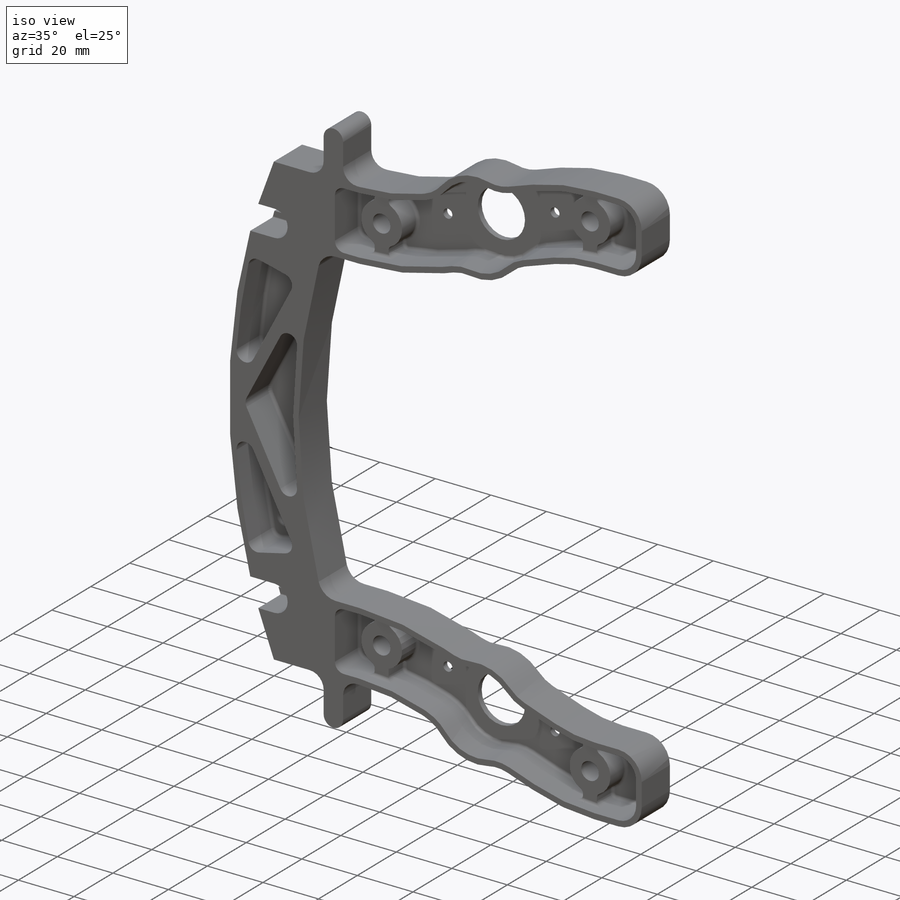
[diagram: iso view]
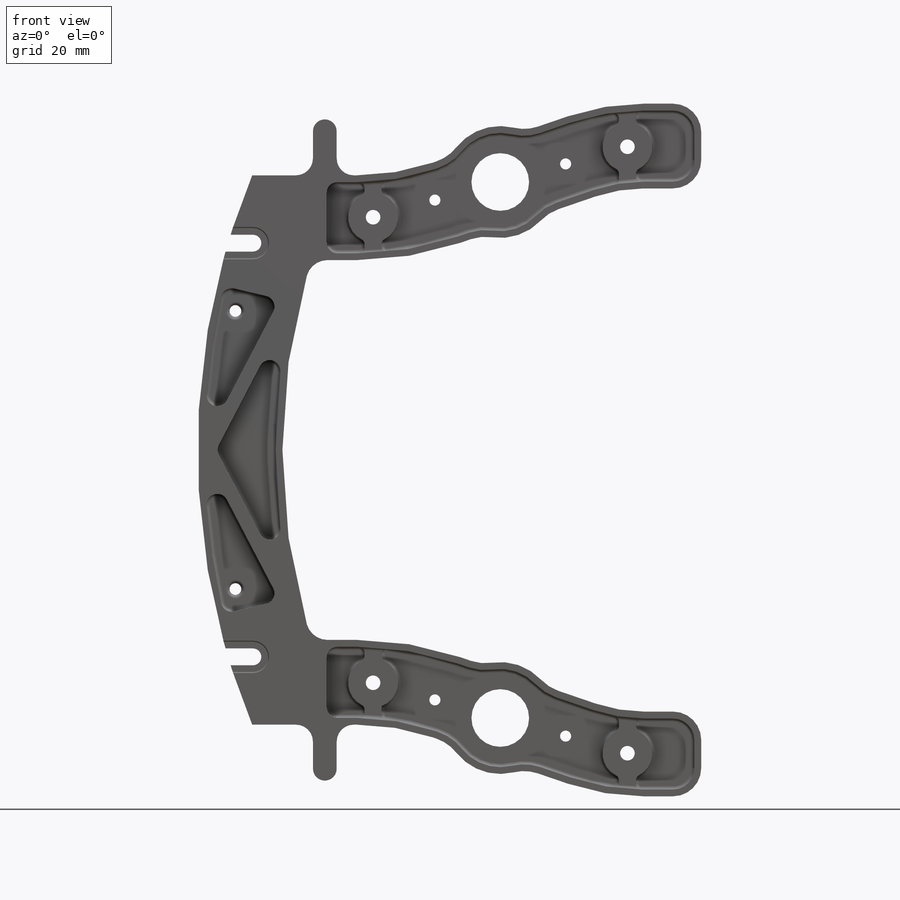
[diagram: front view]
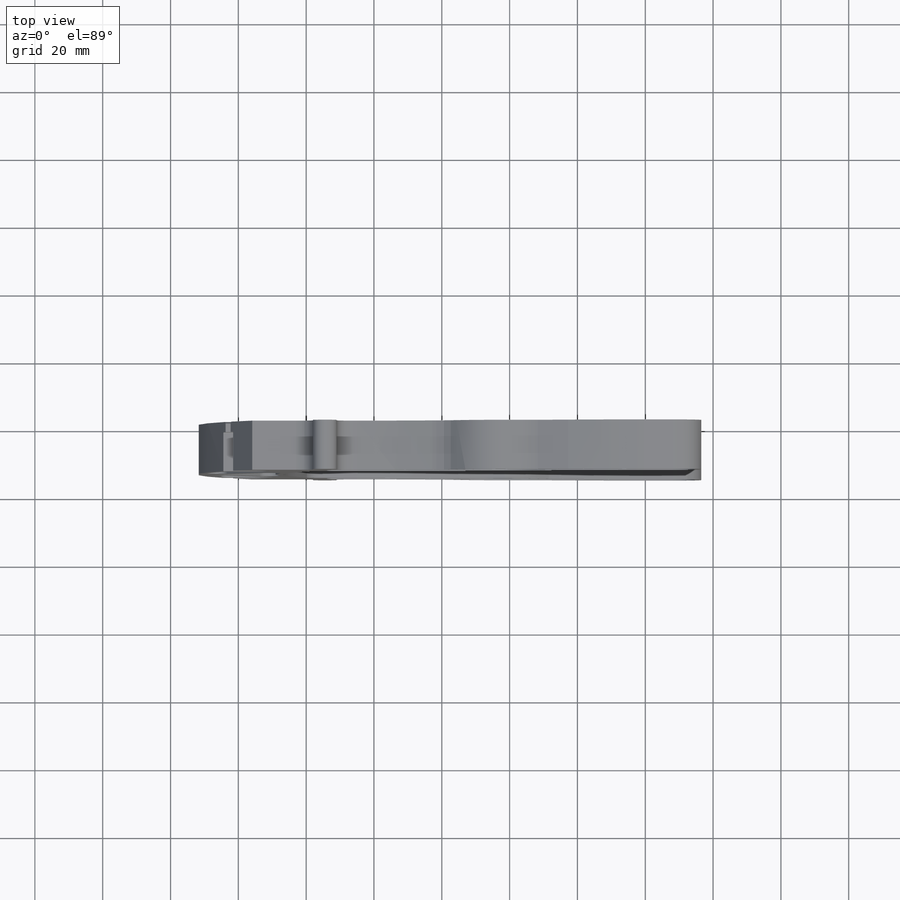
[diagram: top view]
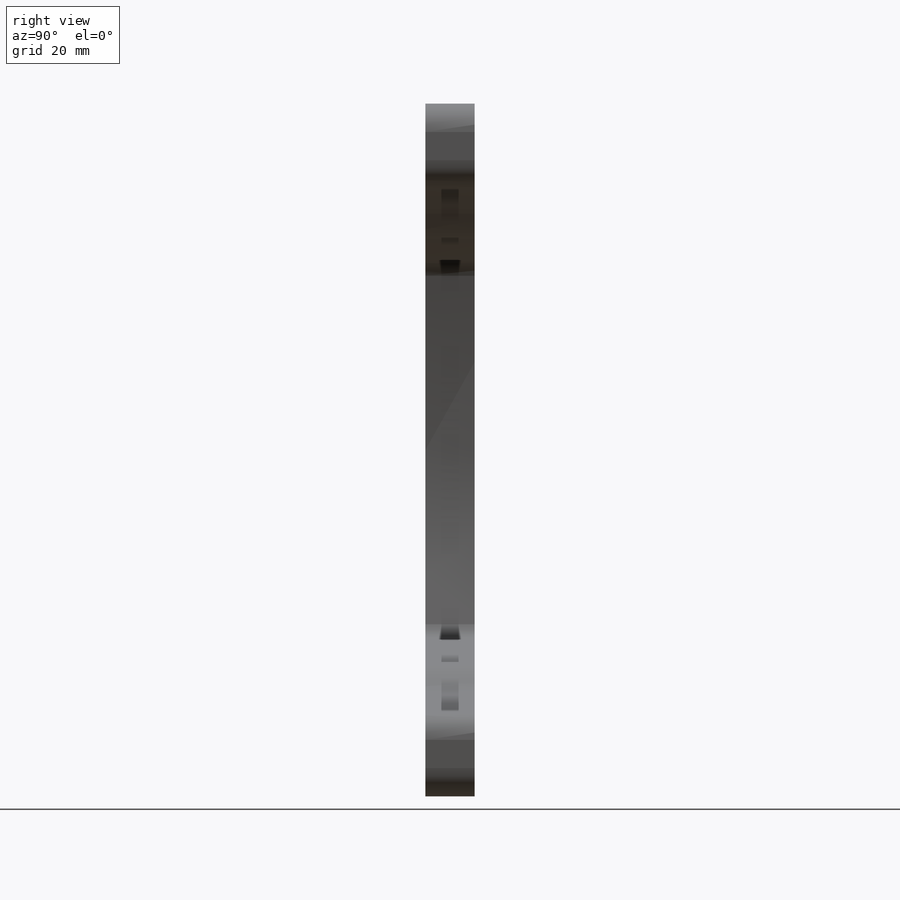
[diagram: right view]
SOLIDWORKS PART (.sldprt)
format: sldprt  version: not decoded by parser v0  size: 1,571,328 bytes
history: native  units: mm
features: sketch x22, fillet x9, extrude x7, mirror x6, hole x4, cut_extrude x4, plane x2, material x1, chamfer x1, shell x1 (+11 scaffold rows collapsed)
feature tree (68):
  scaffold x11  (default folders/planes/origin — collapsed)
  material  "6061 Alloy"
  sketch  "Sketch1"  dims[c1.D1=424.0mm c1.D2=374.0mm c1.D8=12.0mm c1.D9=37.0mm c1.D3=81.0mm c1.D4=25.0mm c1.D5=63.5mm c1.D6=~144.918572mm c1.D7=145.0mm c2.D6=145.0mm c2.D7=108.0mm c3.D6=~21.131403mm c3.D7=25.0mm c3.D8=17.0mm c3.D9=118.525mm c3.D10=40.0mm c3.D11=25.0mm]
  extrude  "Boss-Extrude1"  Depth=14.5mm
  plane  "Plane1"  Offset=89.631403mm
  plane  "Plane2"  Offset=68.5mm
  fillet  "Fillet5"  Radius=8.35mm
  sketch  "Sketch12"  dims[c1.D2=33.0mm c1.D1=122.7625mm c2.D2=25.0mm c2.D3=75.0mm]
  extrude  "bulge and set post hole position"  [1 undecoded]
  mirror  "Mirror4"
  fillet  "Fillet4"  Radius=12.7mm
  sketch  "hole and nubben"  dims[D1=205.0mm D2=61.0mm D3=41.0mm]
  hole  "CBORE for #10 Socket Head Cap Screw1"  Diameter=4.9784mm Depth=14.501mm
  sketch  "3DSketch2"
  sketch  "Sketch7"  dims[hole-wizard template sketch: 42 standard entries collapsed; hole parameters kept: c12.Thru Hole Depth=14.501mm c12.C'Bore Dia.=9.525mm c12.C'Bore Depth=4.826mm]
  sketch  "Sketch10"
  cut_extrude  "Cut-Extrude1"  Depth=3mm
  sketch  "Sketch11"
  cut_extrude  "Cut-Extrude2"  [1 undecoded]
  chamfer  "Chamfer1"  Distance=0.5mm Angle=45deg
  mirror  "Mirror2"
  shell  "Shell1"  Thickness=2mm
  fillet  "Fillet3"  Radius=6.35mm
  sketch  "Sketch13"  dims[D1=14.7mm]
  extrude  "post"  Depth=10mm
  sketch  "Sketch14"  dims[D1=6.3627mm]
  cut_extrude  "Cut-Extrude3"  Depth=3mm
  sketch  "Sketch15"  dims[D1=5.0mm D2=5.0mm]
  extrude  "Boss-Extrude2"  [1 undecoded]
  hole  "#8 Clearance Hole1"  Diameter=4.3053mm Depth=3.001mm
  sketch  "Sketch17"
  sketch  "Sketch16"  dims[hole-wizard template sketch: 60 standard entries collapsed; hole parameters kept: c18.Thru Hole Depth=3.001mm]
  mirror  "Mirror5"
  fillet  "Fillet6"  Radius=1.5875mm
  fillet  "Fillet7"  Radius=3.175mm
  sketch  "Sketch18"  dims[D1=17.0mm]
  cut_extrude  "Cut-Extrude4"  [1 undecoded]
  sketch  "Sketch20"  dims[D1=40.0mm]
  hole  "#4 Clearance Hole1"  Diameter=3.2639mm Depth=2.001mm
  sketch  "3DSketch3"
  sketch  "Sketch21"  dims[hole-wizard template sketch: 60 standard entries collapsed; hole parameters kept: c18.Thru Hole Depth=2.001mm]
  mirror  "Mirror6"
  sketch  "Sketch22"  dims[D1=3.175mm]
  hole  "#29 (0.136) Diameter Hole1"  Diameter=3.4544mm Depth=2mm
  sketch  "3DSketch4"
  sketch  "Sketch23"  dims[hole-wizard template sketch: 54 standard entries collapsed; hole parameters above]
  mirror  "Mirror8"
  sketch  "Sketch25"  dims[D1=6.35mm D3=6.35mm D4=~14.482031mm D2=0.0mm]
  extrude  "Boss-Extrude3"  [1 undecoded]
  sketch  "Sketch26"  dims[D2=4.0mm D3=4.0mm D4=4.0mm D1=0.0mm]
  extrude  "Boss-Extrude4"  [1 undecoded]
  fillet  "Fillet12"  Radius=3.175mm
  fillet  "Fillet8"  Radius=1mm
  sketch  "Sketch24"  dims[D1=7.0mm D2=174.5mm D3=94.0mm D4=~14.298981mm]
  extrude  "stop pad"  [1 undecoded]
  mirror  "Mirror9"
  fillet  "Fillet10"  Radius=5mm
  fillet  "Fillet11"  Radius=0.39624mm
decode coverage: 35 of 54 modeling features carry decoded parameters
note: ~ marks probable driven/reference dimensions
note: 7 parameter values undecoded
summary: no parameter record found for 7 features; Diameter pulled from absorbed wizard sketch
note: suppression state not decoded; provenance and decode notes live in map.json
